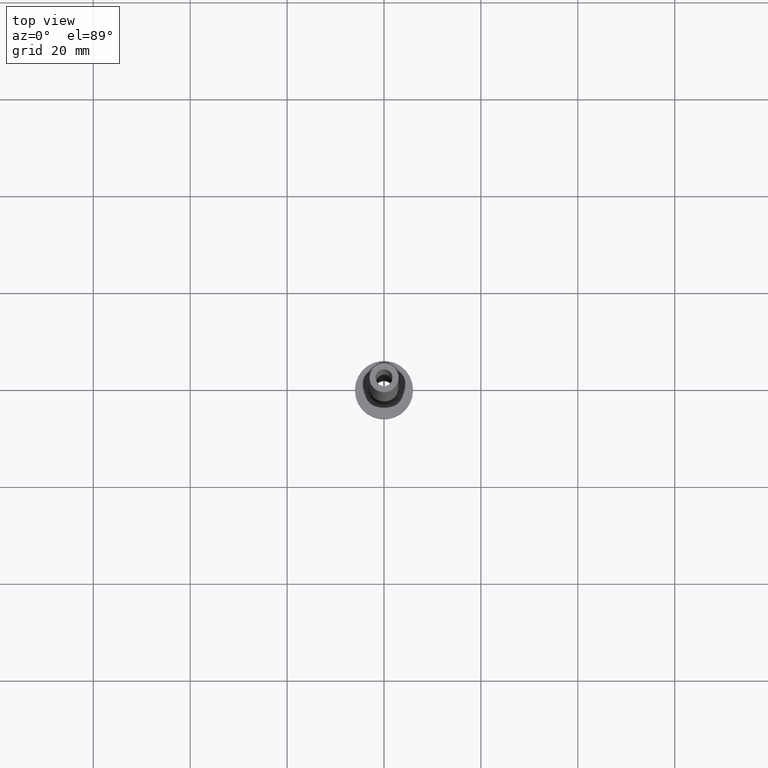
[diagram: clean part render]
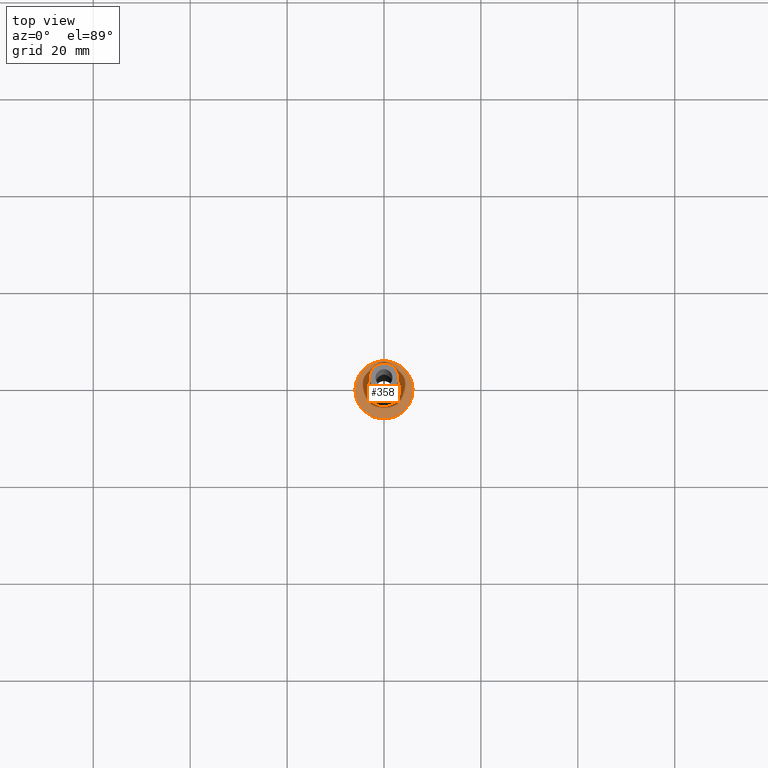
[diagram: same view with one face highlighted and labeled with its STEP entity id]
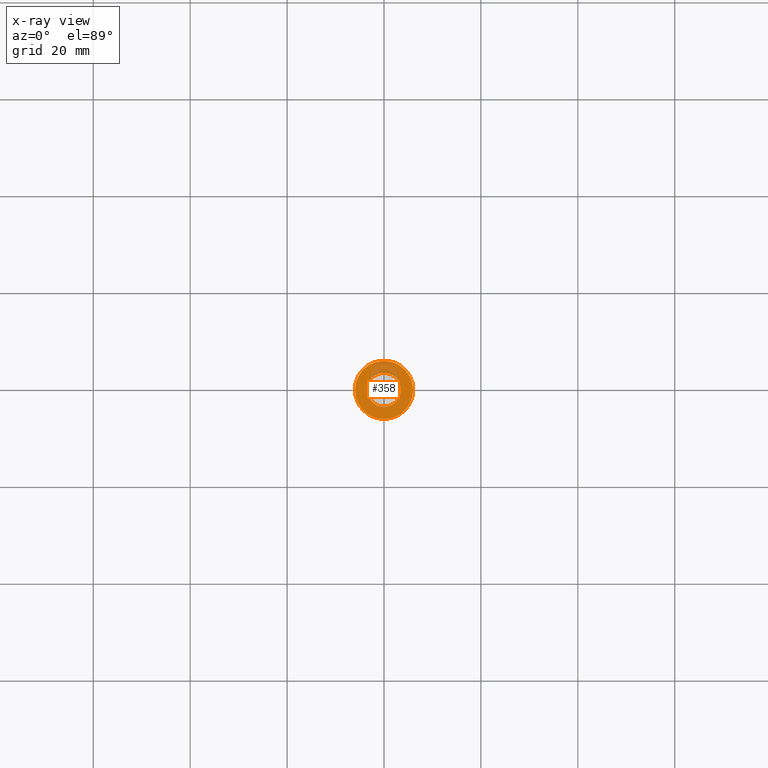
[diagram: x-ray of the same camera — body ghosted, the highlighted face saturated]
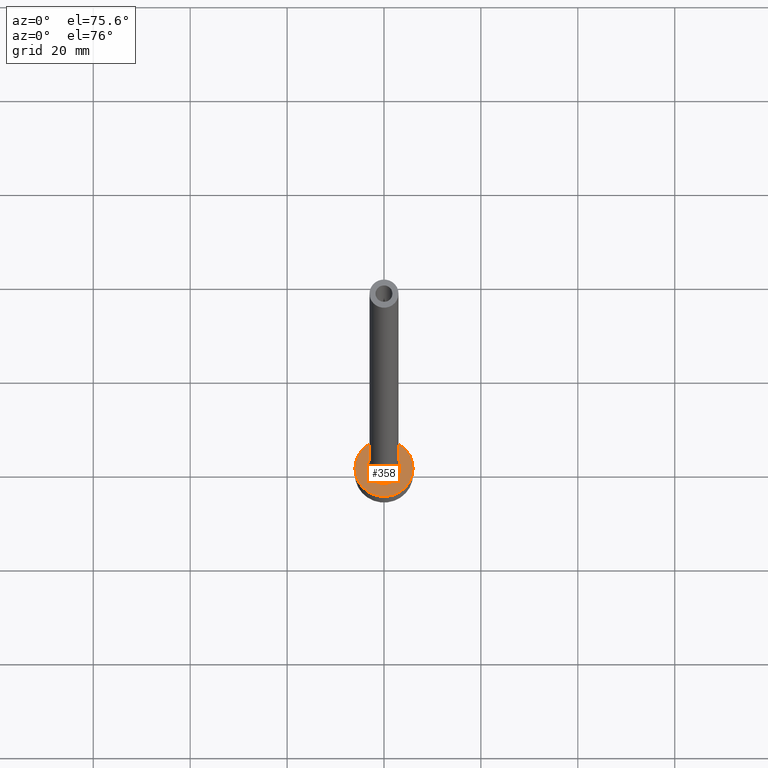
[diagram: same view with one face highlighted and labeled with its STEP entity id]
A machine part, top view. The second image highlights one B-rep face of the part: STEP entity #358.
The next image is the same camera in x-ray: the body ghosted, the highlighted face saturated — about 15% of this face is hidden behind the body in this view.
A second angle (auxiliary view) of the same face is appended — the face is thin or edge-on in the first view.
In plain terms, the highlighted planar face has unit normal (0, 0, 1).
Its self-contained STEP definition (entity closure, byte-faithful):
#6 = DIRECTION ( 'NONE',  ( 0.000000000000000000, 0.000000000000000000, 1.000000000000000000 ) ) ;
#19 = ORIENTED_EDGE ( 'NONE', *, *, #76, .T. ) ;
#20 = EDGE_CURVE ( 'NONE', #234, #193, #357, .T. ) ;
#21 = AXIS2_PLACEMENT_3D ( 'NONE', #149, #318, #73 ) ;
#32 = ORIENTED_EDGE ( 'NONE', *, *, #260, .T. ) ;
#65 = DIRECTION ( 'NONE',  ( -0.000000000000000000, -0.000000000000000000, -1.000000000000000000 ) ) ;
#73 = DIRECTION ( 'NONE',  ( 1.000000000000000000, 0.000000000000000000, 0.000000000000000000 ) ) ;
#76 = EDGE_CURVE ( 'NONE', #305, #316, #393, .T. ) ;
#106 = CARTESIAN_POINT ( 'NONE',  ( 0.000000000000000000, 0.000000000000000000, 5.000000000000000000 ) ) ;
#109 = AXIS2_PLACEMENT_3D ( 'NONE', #235, #163, #274 ) ;
#124 = AXIS2_PLACEMENT_3D ( 'NONE', #200, #65, #310 ) ;
#140 = CARTESIAN_POINT ( 'NONE',  ( -6.000000000000000888, 0.000000000000000000, 5.000000000000000000 ) ) ;
#149 = CARTESIAN_POINT ( 'NONE',  ( 0.000000000000000000, 0.000000000000000000, 5.000000000000000000 ) ) ;
#152 = CARTESIAN_POINT ( 'NONE',  ( 3.500000000000000444, 0.000000000000000000, 5.000000000000002665 ) ) ;
#163 = DIRECTION ( 'NONE',  ( 0.000000000000000000, 0.000000000000000000, 1.000000000000000000 ) ) ;
#167 = CIRCLE ( 'NONE', #124, 3.500000000000000444 ) ;
#170 = CARTESIAN_POINT ( 'NONE',  ( 6.000000000000000888, 7.347880794884120722E-16, 5.000000000000000000 ) ) ;
#176 = FACE_BOUND ( 'NONE', #230, .T. ) ;
#193 = VERTEX_POINT ( 'NONE', #152 ) ;
#200 = CARTESIAN_POINT ( 'NONE',  ( 0.000000000000000000, 0.000000000000000000, 5.000000000000000000 ) ) ;
#202 = ORIENTED_EDGE ( 'NONE', *, *, #300, .T. ) ;
#213 = DIRECTION ( 'NONE',  ( 1.000000000000000000, 0.000000000000000000, -0.000000000000000000 ) ) ;
#217 = DIRECTION ( 'NONE',  ( 0.000000000000000000, 0.000000000000000000, 1.000000000000000000 ) ) ;
#220 = CARTESIAN_POINT ( 'NONE',  ( 0.000000000000000000, 0.000000000000000000, 5.000000000000000000 ) ) ;
#226 = CIRCLE ( 'NONE', #109, 6.000000000000000888 ) ;
#230 = EDGE_LOOP ( 'NONE', ( #202, #386 ) ) ;
#234 = VERTEX_POINT ( 'NONE', #348 ) ;
#235 = CARTESIAN_POINT ( 'NONE',  ( 0.000000000000000000, 0.000000000000000000, 5.000000000000000000 ) ) ;
#260 = EDGE_CURVE ( 'NONE', #316, #305, #226, .T. ) ;
#274 = DIRECTION ( 'NONE',  ( 1.000000000000000000, 0.000000000000000000, 0.000000000000000000 ) ) ;
#287 = EDGE_LOOP ( 'NONE', ( #32, #19 ) ) ;
#300 = EDGE_CURVE ( 'NONE', #193, #234, #167, .T. ) ;
#305 = VERTEX_POINT ( 'NONE', #170 ) ;
#308 = AXIS2_PLACEMENT_3D ( 'NONE', #220, #6, #431 ) ;
#310 = DIRECTION ( 'NONE',  ( 1.000000000000000000, 0.000000000000000000, 0.000000000000000000 ) ) ;
#316 = VERTEX_POINT ( 'NONE', #140 ) ;
#318 = DIRECTION ( 'NONE',  ( -0.000000000000000000, -0.000000000000000000, -1.000000000000000000 ) ) ;
#319 = FACE_OUTER_BOUND ( 'NONE', #287, .T. ) ;
#348 = CARTESIAN_POINT ( 'NONE',  ( -3.500000000000000444, 4.286263797015737088E-16, 5.000000000000002665 ) ) ;
#350 = AXIS2_PLACEMENT_3D ( 'NONE', #106, #217, #213 ) ;
#357 = CIRCLE ( 'NONE', #21, 3.500000000000000444 ) ;
#358 = ADVANCED_FACE ( 'NONE', ( #176, #319 ), #424, .T. ) ;
#386 = ORIENTED_EDGE ( 'NONE', *, *, #20, .T. ) ;
#393 = CIRCLE ( 'NONE', #308, 6.000000000000000888 ) ;
#424 = PLANE ( 'NONE',  #350 ) ;
#431 = DIRECTION ( 'NONE',  ( 1.000000000000000000, 0.000000000000000000, 0.000000000000000000 ) ) ;